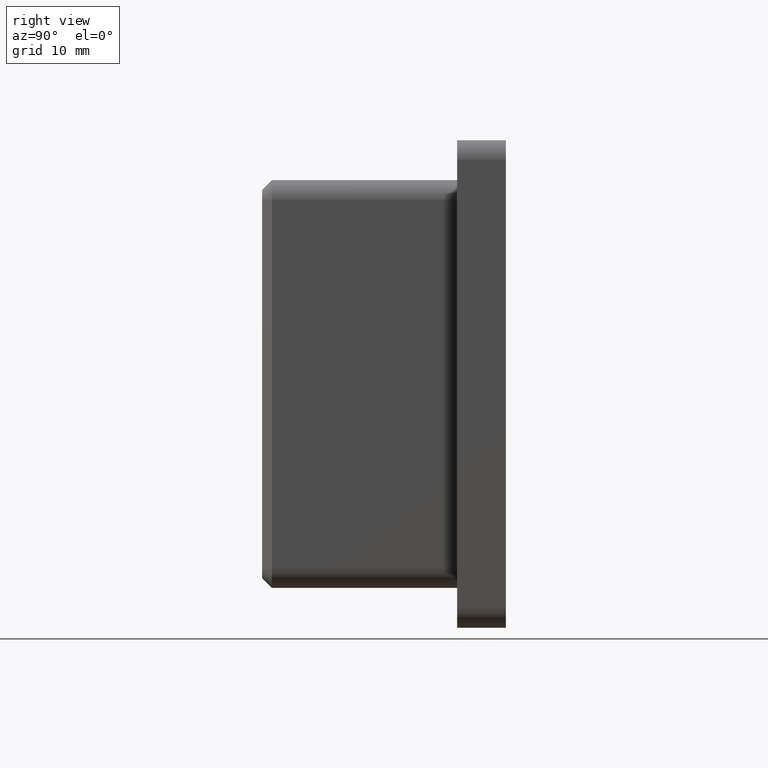
[diagram: clean part render]
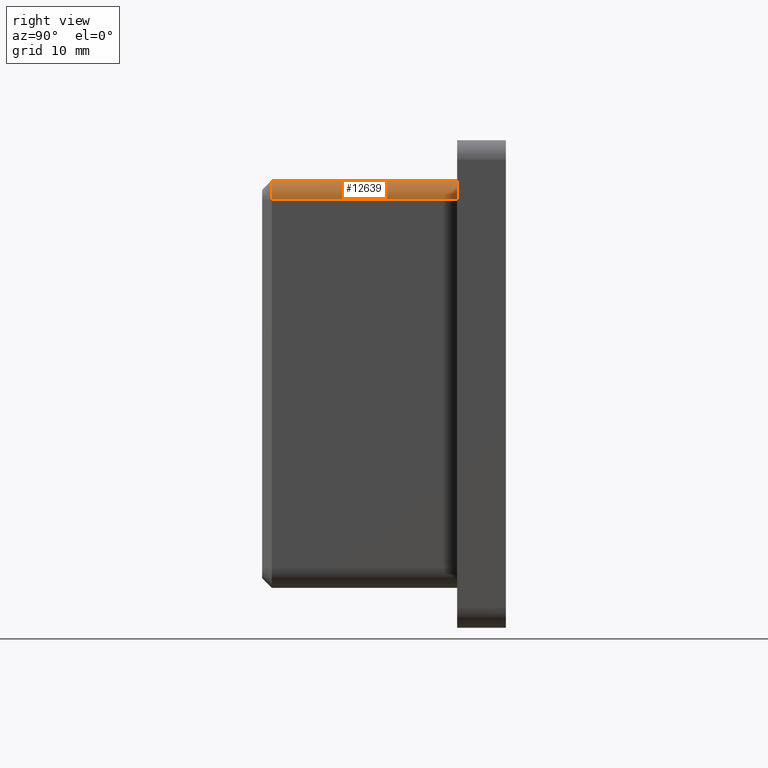
[diagram: same view with one face highlighted and labeled with its STEP entity id]
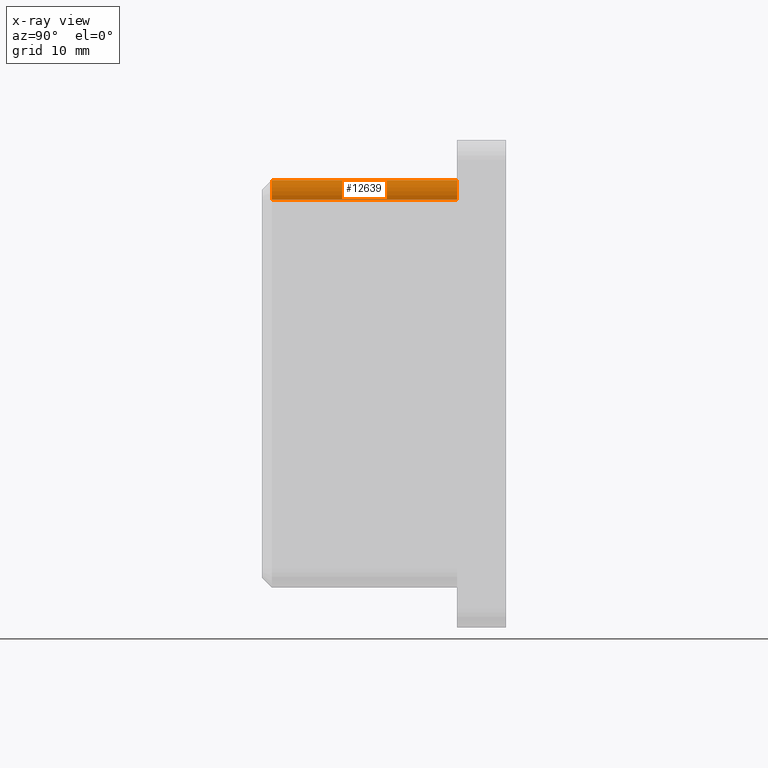
[diagram: x-ray of the same camera — body ghosted, the highlighted face saturated]
A machine part, right view. The second image highlights one B-rep face of the part: STEP entity #12639.
The next image is the same camera in x-ray: the body ghosted, the highlighted face saturated — about 0% of this face is hidden behind the body in this view.
In plain terms, the highlighted cylindrical surface (edge-blend (fillet) strip) has radius 2 mm, axis along (0, 1, 0).
Its self-contained STEP definition (entity closure, byte-faithful):
#160 = VECTOR ( 'NONE', #12382, 1000.000000000000000 ) ;
#179 = DIRECTION ( 'NONE',  ( 0.0000000000000000000, 1.000000000000000000, 0.0000000000000000000 ) ) ;
#385 = AXIS2_PLACEMENT_3D ( 'NONE', #11483, #179, #10136 ) ;
#388 = ORIENTED_EDGE ( 'NONE', *, *, #8142, .T. ) ;
#637 = CYLINDRICAL_SURFACE ( 'NONE', #9604, 2.000000000000001800 ) ;
#991 = DIRECTION ( 'NONE',  ( 0.0000000000000000000, 0.0000000000000000000, 1.000000000000000000 ) ) ;
#1211 = EDGE_LOOP ( 'NONE', ( #10973, #388, #16611, #10062 ) ) ;
#1433 = CARTESIAN_POINT ( 'NONE',  ( 18.89999999999998800, -20.00000000000000000, 18.89999999999998800 ) ) ;
#1472 = VERTEX_POINT ( 'NONE', #17594 ) ;
#3047 = VECTOR ( 'NONE', #5973, 1000.000000000000000 ) ;
#4156 = VERTEX_POINT ( 'NONE', #7725 ) ;
#4319 = DIRECTION ( 'NONE',  ( 0.0000000000000000000, 0.0000000000000000000, 1.000000000000000000 ) ) ;
#4836 = LINE ( 'NONE', #12864, #3047 ) ;
#5101 = VERTEX_POINT ( 'NONE', #17163 ) ;
#5190 = CARTESIAN_POINT ( 'NONE',  ( 18.89999999999998800, -20.00000000000000000, 20.89999999999998800 ) ) ;
#5973 = DIRECTION ( 'NONE',  ( -0.0000000000000000000, -1.000000000000000000, -0.0000000000000000000 ) ) ;
#7725 = CARTESIAN_POINT ( 'NONE',  ( 18.89999999999998800, -18.99999999999999300, 20.89999999999998800 ) ) ;
#8142 = EDGE_CURVE ( 'NONE', #4156, #1472, #17208, .T. ) ;
#9204 = EDGE_CURVE ( 'NONE', #5101, #9414, #18093, .T. ) ;
#9302 = LINE ( 'NONE', #5190, #160 ) ;
#9324 = AXIS2_PLACEMENT_3D ( 'NONE', #15197, #9518, #991 ) ;
#9414 = VERTEX_POINT ( 'NONE', #15279 ) ;
#9518 = DIRECTION ( 'NONE',  ( 0.0000000000000000000, 1.000000000000000000, 0.0000000000000000000 ) ) ;
#9604 = AXIS2_PLACEMENT_3D ( 'NONE', #1433, #11387, #4319 ) ;
#10062 = ORIENTED_EDGE ( 'NONE', *, *, #9204, .F. ) ;
#10136 = DIRECTION ( 'NONE',  ( 0.0000000000000000000, 0.0000000000000000000, -1.000000000000000000 ) ) ;
#10973 = ORIENTED_EDGE ( 'NONE', *, *, #14034, .F. ) ;
#11387 = DIRECTION ( 'NONE',  ( 0.0000000000000000000, 1.000000000000000000, 0.0000000000000000000 ) ) ;
#11483 = CARTESIAN_POINT ( 'NONE',  ( 18.89999999999998800, -18.99999999999999300, 18.89999999999998800 ) ) ;
#12382 = DIRECTION ( 'NONE',  ( 0.0000000000000000000, 1.000000000000000000, 0.0000000000000000000 ) ) ;
#12639 = ADVANCED_FACE ( 'NONE', ( #14454 ), #637, .T. ) ;
#12864 = CARTESIAN_POINT ( 'NONE',  ( 20.89999999999998800, -20.00000000000000000, 18.89999999999998800 ) ) ;
#14034 = EDGE_CURVE ( 'NONE', #4156, #5101, #9302, .T. ) ;
#14454 = FACE_OUTER_BOUND ( 'NONE', #1211, .T. ) ;
#15197 = CARTESIAN_POINT ( 'NONE',  ( 18.89999999999998800, 0.0000000000000000000, 18.89999999999998800 ) ) ;
#15279 = CARTESIAN_POINT ( 'NONE',  ( 20.89999999999998800, 0.0000000000000000000, 18.89999999999998800 ) ) ;
#15566 = EDGE_CURVE ( 'NONE', #9414, #1472, #4836, .T. ) ;
#16611 = ORIENTED_EDGE ( 'NONE', *, *, #15566, .F. ) ;
#17163 = CARTESIAN_POINT ( 'NONE',  ( 18.89999999999997400, 0.0000000000000000000, 20.89999999999998800 ) ) ;
#17208 = CIRCLE ( 'NONE', #385, 2.000000000000001800 ) ;
#17594 = CARTESIAN_POINT ( 'NONE',  ( 20.89999999999998800, -18.99999999999999300, 18.89999999999998800 ) ) ;
#18093 = CIRCLE ( 'NONE', #9324, 2.000000000000001800 ) ;